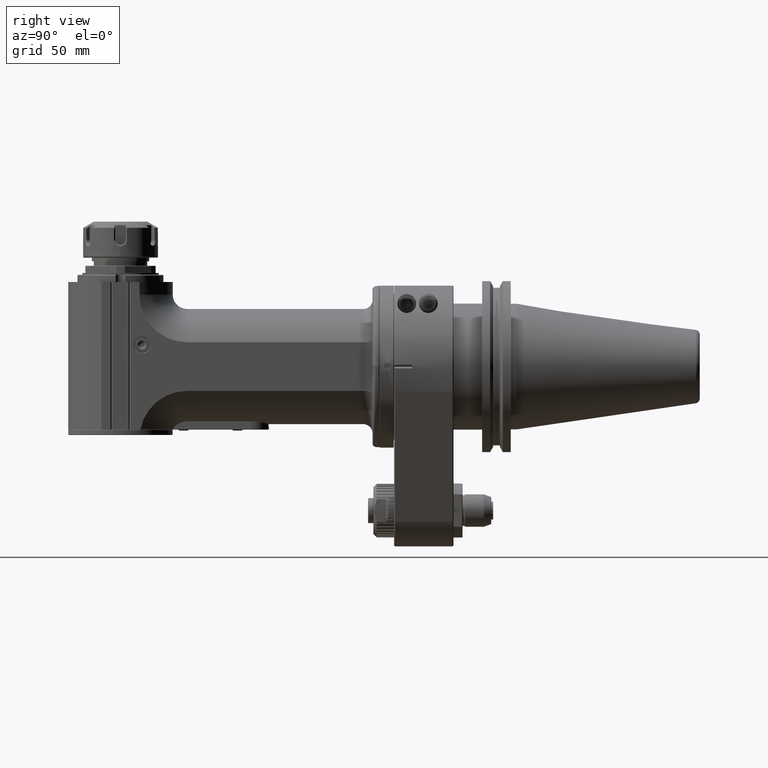
[diagram: clean part render]
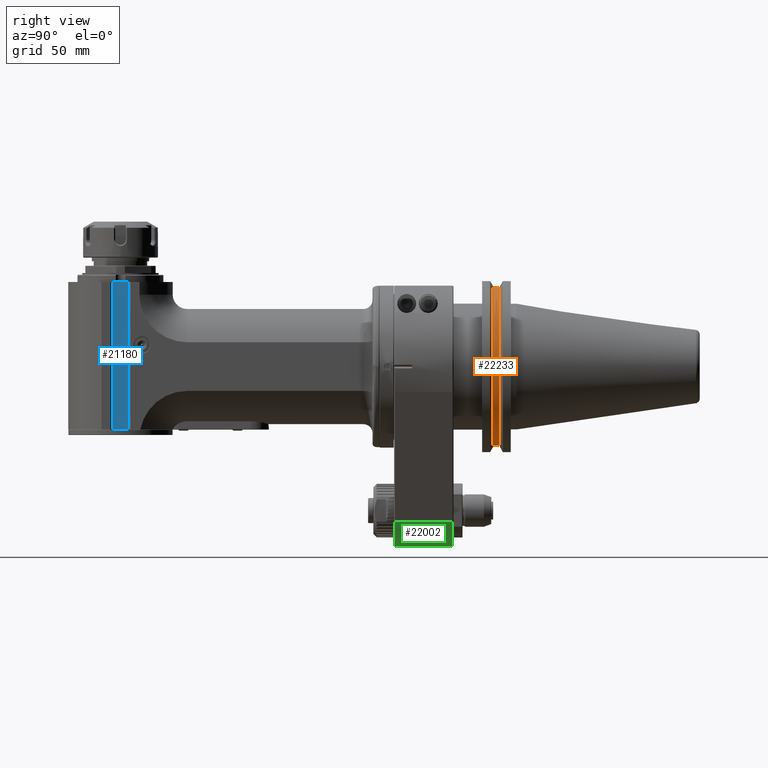
[diagram: same view with three faces highlighted in distinct colors, each labeled with its STEP entity id]
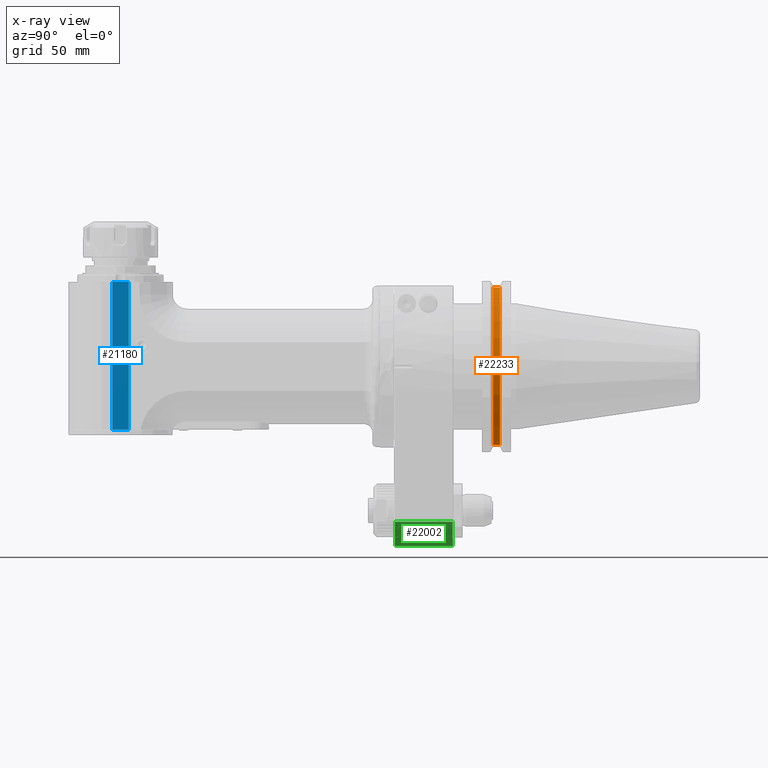
[diagram: x-ray of the same camera — body ghosted, the three highlighted faces saturated]
A machine part, right view with three faces highlighted in distinct colors.
The next image is the same camera in x-ray (body ghosted, the three faces saturated) — at least one of them is partly hidden behind the body in this view.
Their STEP definitions:

[orange] entity #22233 — the highlighted cylindrical surface (partial cylindrical patch) has radius 45.625 mm, axis along (0, -1, 0).
#2660=FACE_OUTER_BOUND('',#3999,.T.);
#3999=EDGE_LOOP('',(#20753,#20754,#20755,#20756));
#4807=CIRCLE('',#24201,1.79625984251968);
#4808=CIRCLE('',#24203,1.79625984251968);
#6921=LINE('',#42141,#9044);
#6937=LINE('',#42207,#9060);
#9044=VECTOR('',#30069,0.147637795275591);
#9060=VECTOR('',#30125,0.147637795275591);
#11146=VERTEX_POINT('',#42138);
#11147=VERTEX_POINT('',#42140);
#11164=VERTEX_POINT('',#42204);
#11165=VERTEX_POINT('',#42206);
#14335=EDGE_CURVE('',#11146,#11147,#6921,.T.);
#14364=EDGE_CURVE('',#11164,#11165,#6937,.T.);
#14370=EDGE_CURVE('',#11146,#11165,#4807,.T.);
#14371=EDGE_CURVE('',#11164,#11147,#4808,.T.);
#20753=ORIENTED_EDGE('',*,*,#14335,.F.);
#20754=ORIENTED_EDGE('',*,*,#14370,.T.);
#20755=ORIENTED_EDGE('',*,*,#14364,.F.);
#20756=ORIENTED_EDGE('',*,*,#14371,.T.);
#21032=CYLINDRICAL_SURFACE('',#24202,1.79625984251968);
#22233=ADVANCED_FACE('',(#2660),#21032,.T.);
#24201=AXIS2_PLACEMENT_3D('',#42220,#30138,#30139);
#24202=AXIS2_PLACEMENT_3D('',#42221,#30140,#30141);
#24203=AXIS2_PLACEMENT_3D('',#42222,#30142,#30143);
#30069=DIRECTION('',(0.,-1.,1.515824502955E-14));
#30125=DIRECTION('',(0.,1.,-1.705302565824E-14));
#30138=DIRECTION('center_axis',(0.,-1.,0.));
#30139=DIRECTION('ref_axis',(0.281643835616411,0.,-0.959519020061237));
#30140=DIRECTION('center_axis',(0.,-1.,0.));
#30141=DIRECTION('ref_axis',(0.,0.,1.));
#30142=DIRECTION('center_axis',(0.,1.,0.));
#30143=DIRECTION('ref_axis',(0.281643835616411,0.,0.959519020061237));
#42138=CARTESIAN_POINT('',(0.505905511811024,2.31397637795276,-1.72354548386969));
#42140=CARTESIAN_POINT('',(0.505905511811024,2.16633858267717,-1.72354548386969));
#42141=CARTESIAN_POINT('',(0.505905511811024,2.31397637795276,-1.72354548386969));
#42204=CARTESIAN_POINT('',(0.505905511811024,2.16633858267717,1.72354548386968));
#42206=CARTESIAN_POINT('',(0.505905511811024,2.31397637795276,1.72354548386968));
#42207=CARTESIAN_POINT('',(0.505905511811024,2.16633858267717,1.72354548386968));
#42220=CARTESIAN_POINT('Origin',(0.,2.31397637795276,-4.82144015412205E-16));
#42221=CARTESIAN_POINT('Origin',(0.,2.39230291444173,-4.82144015412205E-16));
#42222=CARTESIAN_POINT('Origin',(0.,2.16633858267717,-4.82144015412205E-16));

[blue] entity #21180 — the highlighted planar face has unit normal (-1, -0, 0).
#470=PLANE('',#22557);
#1607=FACE_OUTER_BOUND('',#2859,.T.);
#2859=EDGE_LOOP('',(#15251,#15252,#15253,#15254));
#5025=LINE('',#31376,#7148);
#5228=LINE('',#32143,#7351);
#5229=LINE('',#32146,#7352);
#5230=LINE('',#32147,#7353);
#7148=VECTOR('',#24487,0.362204724409449);
#7351=VECTOR('',#25138,3.22834645669291);
#7352=VECTOR('',#25141,0.362204724409449);
#7353=VECTOR('',#25142,3.22834645669291);
#9287=VERTEX_POINT('',#31373);
#9288=VERTEX_POINT('',#31375);
#9486=VERTEX_POINT('',#32141);
#9487=VERTEX_POINT('',#32145);
#11413=EDGE_CURVE('',#9288,#9287,#5025,.T.);
#11716=EDGE_CURVE('',#9287,#9486,#5228,.T.);
#11717=EDGE_CURVE('',#9487,#9486,#5229,.T.);
#11718=EDGE_CURVE('',#9288,#9487,#5230,.T.);
#15251=ORIENTED_EDGE('',*,*,#11413,.T.);
#15252=ORIENTED_EDGE('',*,*,#11716,.T.);
#15253=ORIENTED_EDGE('',*,*,#11717,.F.);
#15254=ORIENTED_EDGE('',*,*,#11718,.F.);
#21180=ADVANCED_FACE('',(#1607),#470,.F.);
#22557=AXIS2_PLACEMENT_3D('',#32144,#25139,#25140);
#24487=DIRECTION('',(0.,1.,0.));
#25138=DIRECTION('',(0.,0.,1.));
#25139=DIRECTION('center_axis',(-1.,0.,0.));
#25140=DIRECTION('ref_axis',(0.,1.,0.));
#25141=DIRECTION('',(0.,1.,0.));
#25142=DIRECTION('',(0.,0.,1.));
#31373=CARTESIAN_POINT('',(1.13779527559055,-6.78740157480315,-1.37795275590551));
#31375=CARTESIAN_POINT('',(1.13779527559055,-7.1496062992126,-1.37795275590551));
#31376=CARTESIAN_POINT('',(1.13779527559055,-7.1496062992126,-1.37795275590551));
#32141=CARTESIAN_POINT('',(1.13779527559055,-6.78740157480315,1.8503937007874));
#32143=CARTESIAN_POINT('',(1.13779527559055,-6.78740157480315,-1.37795275590551));
#32144=CARTESIAN_POINT('Origin',(1.13779527559055,-6.96850393700787,1.8503937007874));
#32145=CARTESIAN_POINT('',(1.13779527559055,-7.1496062992126,1.8503937007874));
#32146=CARTESIAN_POINT('',(1.13779527559055,-7.1496062992126,1.8503937007874));
#32147=CARTESIAN_POINT('',(1.13779527559055,-7.1496062992126,-1.37795275590551));

[green] entity #22002 — the highlighted cylindrical surface (edge-blend (fillet) strip) has radius 20 mm, axis along (0, 1, 0).
#2429=FACE_OUTER_BOUND('',#3753,.T.);
#3753=EDGE_LOOP('',(#19607,#19608,#19609,#19610));
#4537=CIRCLE('',#23521,0.78740157480315);
#4694=CIRCLE('',#23851,0.78740157480315);
#6598=LINE('',#41109,#8721);
#6601=LINE('',#41117,#8724);
#8721=VECTOR('',#29092,1.25983201757795);
#8724=VECTOR('',#29103,1.25983200986969);
#10618=VERTEX_POINT('',#39445);
#10619=VERTEX_POINT('',#39449);
#10899=VERTEX_POINT('',#41107);
#10900=VERTEX_POINT('',#41113);
#13437=EDGE_CURVE('',#10619,#10618,#4537,.T.);
#13885=EDGE_CURVE('',#10899,#10618,#6598,.T.);
#13888=EDGE_CURVE('',#10899,#10900,#4694,.T.);
#13889=EDGE_CURVE('',#10619,#10900,#6601,.T.);
#19607=ORIENTED_EDGE('',*,*,#13888,.T.);
#19608=ORIENTED_EDGE('',*,*,#13889,.F.);
#19609=ORIENTED_EDGE('',*,*,#13437,.T.);
#19610=ORIENTED_EDGE('',*,*,#13885,.F.);
#20975=CYLINDRICAL_SURFACE('',#23852,0.78740157480315);
#22002=ADVANCED_FACE('',(#2429),#20975,.T.);
#23521=AXIS2_PLACEMENT_3D('',#39450,#28200,#28201);
#23851=AXIS2_PLACEMENT_3D('',#41115,#29099,#29100);
#23852=AXIS2_PLACEMENT_3D('',#41116,#29101,#29102);
#28200=DIRECTION('center_axis',(0.,1.,0.));
#28201=DIRECTION('ref_axis',(0.,0.,-1.));
#29092=DIRECTION('',(1.95400881205E-14,-1.,0.));
#29099=DIRECTION('center_axis',(0.,-1.,0.));
#29100=DIRECTION('ref_axis',(0.,0.,-1.));
#29101=DIRECTION('center_axis',(0.,1.,0.));
#29102=DIRECTION('ref_axis',(1.,0.,0.));
#29103=DIRECTION('',(0.,1.,0.));
#39445=CARTESIAN_POINT('',(-0.747966745000725,0.0196899900533125,-3.39566929045722));
#39449=CARTESIAN_POINT('',(0.747966744983022,0.0196899901920695,-3.39566929069518));
#39450=CARTESIAN_POINT('Origin',(-7.69288395015748E-15,0.0196949184187874,
-3.1496062992126));
#41107=CARTESIAN_POINT('',(-0.747966745000727,1.27952260837186,-3.39566929045722));
#41109=CARTESIAN_POINT('',(-0.747966740598819,1.27952230800157,-3.39566928900905));
#41113=CARTESIAN_POINT('',(0.74796674056908,1.27952261953063,-3.39566928912586));
#41115=CARTESIAN_POINT('Origin',(1.06301669129449E-14,1.2795176800063,-3.1496062992126));
#41116=CARTESIAN_POINT('Origin',(0.,0.,-3.1496062992126));
#41117=CARTESIAN_POINT('',(0.747966740527953,0.0196902942776929,-3.39566928922953));